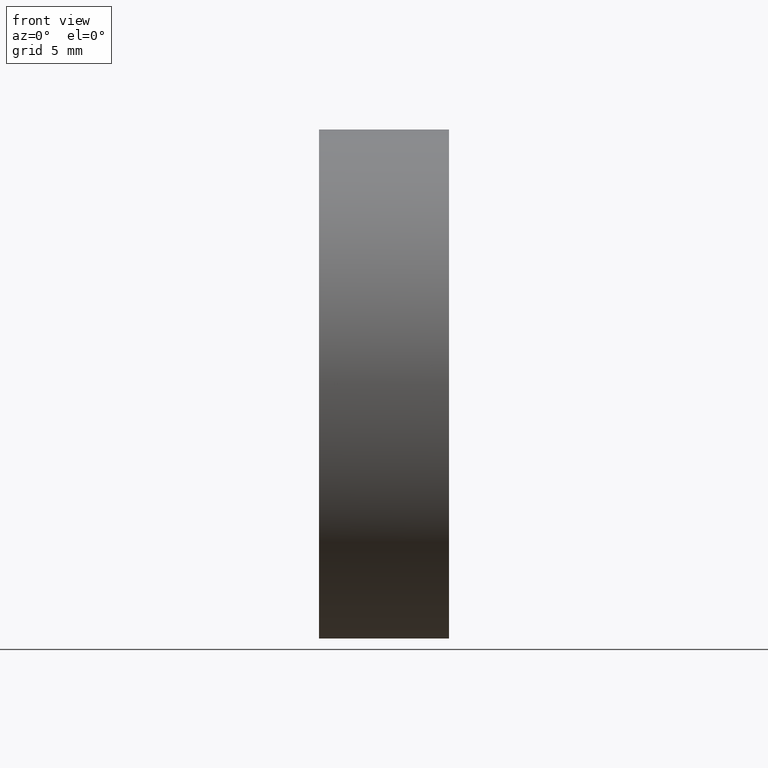
[diagram: clean part render]
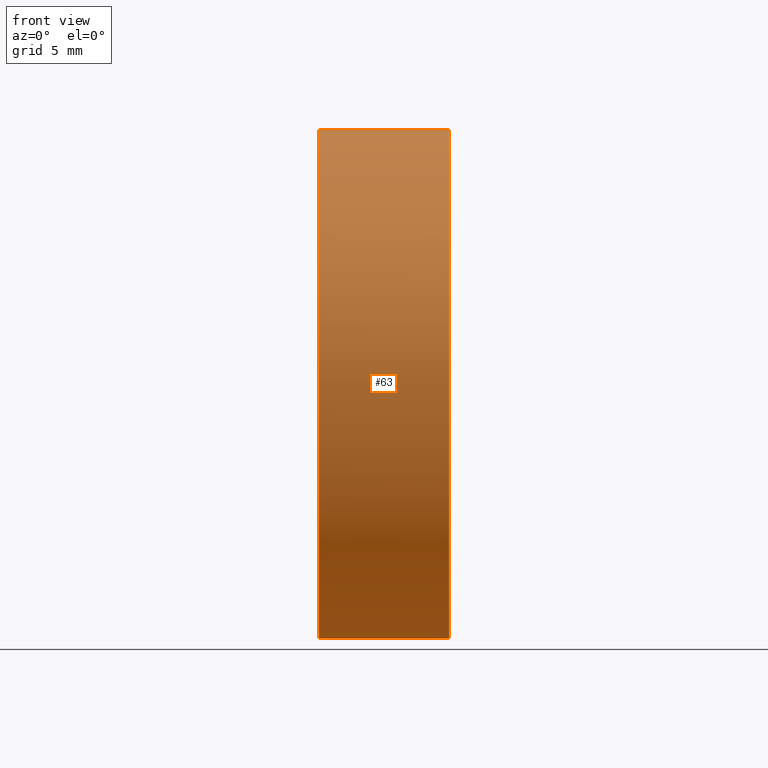
[diagram: same view with one face highlighted and labeled with its STEP entity id]
A machine part, front view. The second image highlights one B-rep face of the part: STEP entity #63.
In plain terms, the highlighted cylindrical surface (partial cylindrical patch) has radius 12.5 mm, axis along (-1, -0, -0).
Its self-contained STEP definition (entity closure, byte-faithful):
#2 = CIRCLE ( 'NONE', #115, 12.50000000000002500 ) ;
#9 = VERTEX_POINT ( 'NONE', #94 ) ;
#13 = VERTEX_POINT ( 'NONE', #40 ) ;
#31 = FACE_OUTER_BOUND ( 'NONE', #68, .T. ) ;
#32 = EDGE_CURVE ( 'NONE', #9, #13, #2, .T. ) ;
#33 = CARTESIAN_POINT ( 'NONE',  ( 115.0926555349195200, 69.37802112337243400, -12.49999999999999600 ) ) ;
#36 = VECTOR ( 'NONE', #178, 1000.000000000000000 ) ;
#38 = AXIS2_PLACEMENT_3D ( 'NONE', #182, #152, #80 ) ;
#39 = VERTEX_POINT ( 'NONE', #69 ) ;
#40 = CARTESIAN_POINT ( 'NONE',  ( 121.4836615517148000, 56.87802112337231400, 0.0000000000000000000 ) ) ;
#41 = VECTOR ( 'NONE', #84, 1000.000000000000000 ) ;
#42 = DIRECTION ( 'NONE',  ( -1.000000000000000000, -0.0000000000000000000, -0.0000000000000000000 ) ) ;
#48 = ORIENTED_EDGE ( 'NONE', *, *, #99, .F. ) ;
#50 = DIRECTION ( 'NONE',  ( 0.0000000000000000000, 0.0000000000000000000, 1.000000000000000000 ) ) ;
#54 = VERTEX_POINT ( 'NONE', #186 ) ;
#55 = CIRCLE ( 'NONE', #38, 12.49999999999999600 ) ;
#63 = ADVANCED_FACE ( 'NONE', ( #31 ), #105, .T. ) ;
#66 = EDGE_CURVE ( 'NONE', #54, #39, #154, .T. ) ;
#68 = EDGE_LOOP ( 'NONE', ( #48, #168, #89, #148, #142 ) ) ;
#69 = CARTESIAN_POINT ( 'NONE',  ( 115.0926555349195200, 69.37802112337243400, 12.49999999999999600 ) ) ;
#70 = CARTESIAN_POINT ( 'NONE',  ( 108.9851430021651000, 69.37802112337243400, 12.50000000000001100 ) ) ;
#76 = CARTESIAN_POINT ( 'NONE',  ( 108.9851430021651000, 69.37802112337243400, -12.50000000000001100 ) ) ;
#80 = DIRECTION ( 'NONE',  ( 0.0000000000000000000, 0.0000000000000000000, 1.000000000000000000 ) ) ;
#84 = DIRECTION ( 'NONE',  ( -1.000000000000000000, -0.0000000000000000000, -0.0000000000000000000 ) ) ;
#85 = AXIS2_PLACEMENT_3D ( 'NONE', #170, #42, #169 ) ;
#89 = ORIENTED_EDGE ( 'NONE', *, *, #161, .T. ) ;
#94 = CARTESIAN_POINT ( 'NONE',  ( 121.4836615517147900, 69.37802112337243400, -12.50000000000002500 ) ) ;
#99 = EDGE_CURVE ( 'NONE', #9, #109, #111, .T. ) ;
#100 = DIRECTION ( 'NONE',  ( -1.000000000000000000, -0.0000000000000000000, -0.0000000000000000000 ) ) ;
#105 = CYLINDRICAL_SURFACE ( 'NONE', #85, 12.50000000000001100 ) ;
#109 = VERTEX_POINT ( 'NONE', #33 ) ;
#111 = LINE ( 'NONE', #76, #36 ) ;
#115 = AXIS2_PLACEMENT_3D ( 'NONE', #130, #145, #155 ) ;
#126 = AXIS2_PLACEMENT_3D ( 'NONE', #135, #100, #50 ) ;
#130 = CARTESIAN_POINT ( 'NONE',  ( 121.4836615517147900, 69.37802112337243400, 0.0000000000000000000 ) ) ;
#132 = EDGE_CURVE ( 'NONE', #109, #39, #55, .T. ) ;
#135 = CARTESIAN_POINT ( 'NONE',  ( 121.4836615517147900, 69.37802112337243400, 0.0000000000000000000 ) ) ;
#140 = CIRCLE ( 'NONE', #126, 12.50000000000002500 ) ;
#142 = ORIENTED_EDGE ( 'NONE', *, *, #132, .F. ) ;
#145 = DIRECTION ( 'NONE',  ( -1.000000000000000000, -0.0000000000000000000, -0.0000000000000000000 ) ) ;
#148 = ORIENTED_EDGE ( 'NONE', *, *, #66, .T. ) ;
#152 = DIRECTION ( 'NONE',  ( -1.000000000000000000, -0.0000000000000000000, -0.0000000000000000000 ) ) ;
#154 = LINE ( 'NONE', #70, #41 ) ;
#155 = DIRECTION ( 'NONE',  ( 0.0000000000000000000, 0.0000000000000000000, 1.000000000000000000 ) ) ;
#161 = EDGE_CURVE ( 'NONE', #13, #54, #140, .T. ) ;
#168 = ORIENTED_EDGE ( 'NONE', *, *, #32, .T. ) ;
#169 = DIRECTION ( 'NONE',  ( 0.0000000000000000000, 0.0000000000000000000, 1.000000000000000000 ) ) ;
#170 = CARTESIAN_POINT ( 'NONE',  ( 108.9851430021651000, 69.37802112337243400, 0.0000000000000000000 ) ) ;
#178 = DIRECTION ( 'NONE',  ( -1.000000000000000000, -0.0000000000000000000, -0.0000000000000000000 ) ) ;
#182 = CARTESIAN_POINT ( 'NONE',  ( 115.0926555349195200, 69.37802112337243400, 0.0000000000000000000 ) ) ;
#186 = CARTESIAN_POINT ( 'NONE',  ( 121.4836615517147900, 69.37802112337243400, 12.50000000000002500 ) ) ;